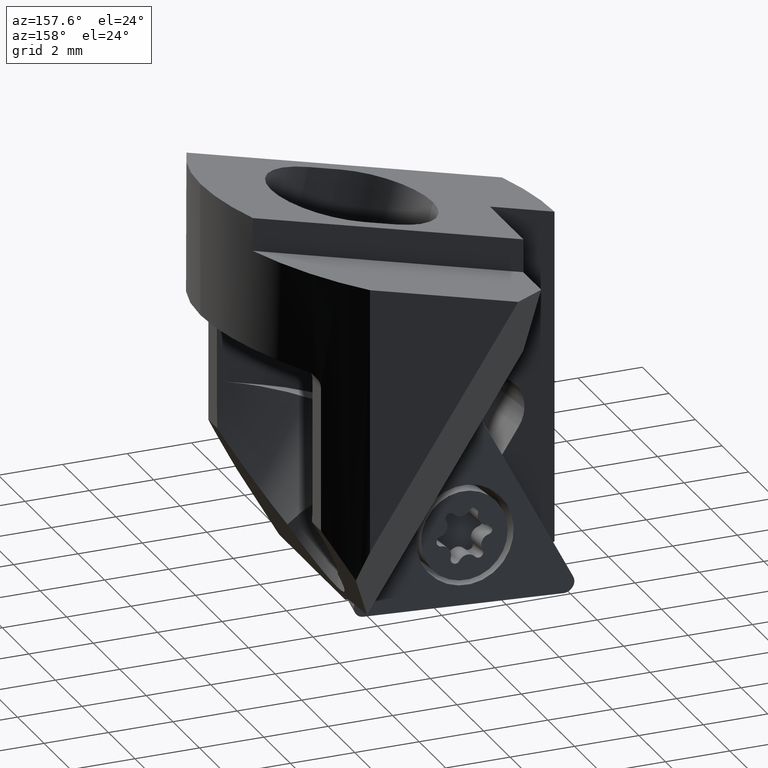
[diagram: clean part render]
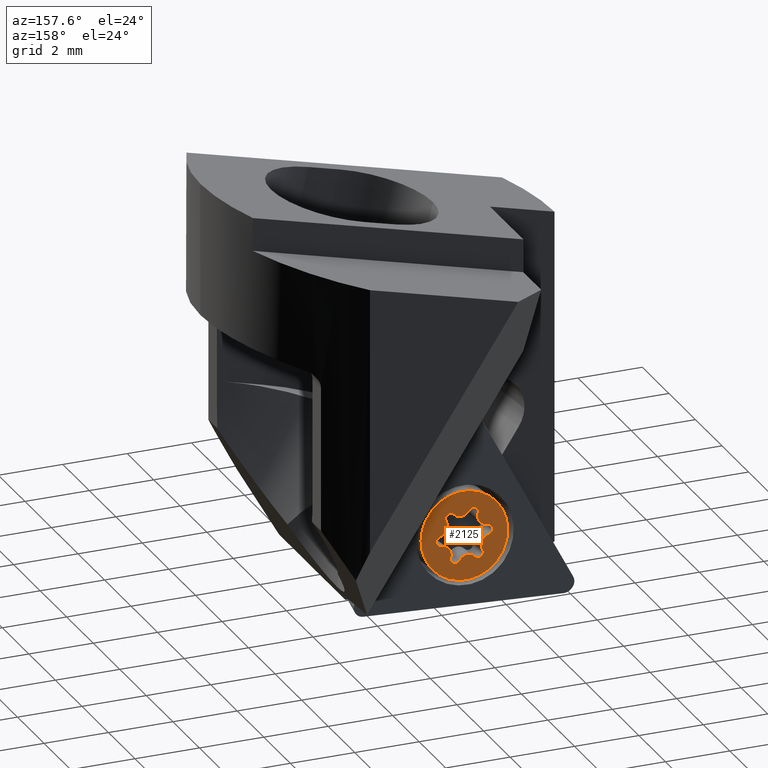
[diagram: same view with one face highlighted and labeled with its STEP entity id]
A machine part, auxiliary view. The second image highlights one B-rep face of the part: STEP entity #2125.
In plain terms, the highlighted planar face has unit normal (0.0046, -0.9962, -0.087).
Its self-contained STEP definition (entity closure, byte-faithful):
#869=EDGE_CURVE('NONE',#1945,#1821,#2448,.T.);
#929=VERTEX_POINT('NONE',#2513);
#955=VERTEX_POINT('NONE',#2541);
#987=EDGE_CURVE('NONE',#2011,#1053,#2575,.T.);
#1053=VERTEX_POINT('',#2644);
#1075=EDGE_CURVE('NONE',#2369,#1945,#2669,.T.);
#1135=EDGE_CURVE('NONE',#1981,#2011,#2732,.T.);
#1163=VERTEX_POINT('NONE',#2762);
#1241=EDGE_CURVE('NONE',#929,#1697,#2849,.T.);
#1275=VERTEX_POINT('NONE',#2888);
#1401=EDGE_CURVE('NONE',#1741,#955,#3029,.T.);
#1437=VERTEX_POINT('NONE',#3071);
#1579=VERTEX_POINT('NONE',#3224);
#1609=EDGE_CURVE('NONE',#1579,#1801,#3257,.T.);
#1697=VERTEX_POINT('NONE',#3353);
#1719=EDGE_CURVE('NONE',#1893,#1275,#3376,.T.);
#1741=VERTEX_POINT('NONE',#3401);
#1779=EDGE_CURVE('NONE',#1163,#1437,#3444,.T.);
#1781=VERTEX_POINT('NONE',#3446);
#1801=VERTEX_POINT('NONE',#3468);
#1821=VERTEX_POINT('NONE',#3490);
#1843=EDGE_CURVE('NONE',#1821,#2211,#3517,.T.);
#1849=EDGE_CURVE('NONE',#1863,#2369,#3523,.T.);
#1863=VERTEX_POINT('NONE',#3539);
#1877=EDGE_CURVE('NONE',#2211,#1163,#3554,.T.);
#1893=VERTEX_POINT('',#3573);
#1941=EDGE_CURVE('NONE',#2203,#1579,#3624,.T.);
#1945=VERTEX_POINT('',#3628);
#1957=EDGE_CURVE('NONE',#1437,#1981,#3641,.T.);
#1979=EDGE_CURVE('NONE',#955,#1741,#3668,.T.);
#1981=VERTEX_POINT('NONE',#3670);
#2011=VERTEX_POINT('NONE',#3705);
#2041=EDGE_CURVE('NONE',#1275,#2203,#3739,.T.);
#2055=EDGE_CURVE('NONE',#1053,#929,#3757,.T.);
#2077=EDGE_CURVE('NONE',#1697,#1781,#3783,.T.);
#2125=ADVANCED_FACE('NONE',(#3833,#3834),#3835,.F.);
#2147=EDGE_CURVE('NONE',#1781,#1893,#3859,.T.);
#2153=EDGE_CURVE('NONE',#1801,#1863,#3866,.T.);
#2203=VERTEX_POINT('NONE',#3921);
#2211=VERTEX_POINT('NONE',#3929);
#2369=VERTEX_POINT('NONE',#4107);
#2448=CIRCLE('',#4200,0.3);
#2513=CARTESIAN_POINT('',(-2.85978115082642,0.415067420885639,-12.9650435031299));
#2541=CARTESIAN_POINT('',(-2.43915213669772,0.239608362394699,-10.9347408066239));
#2575=CIRCLE('',#4385,0.15);
#2644=CARTESIAN_POINT('',(-2.98547450623635,0.418880581878103,-13.0152752555323));
#2669=CIRCLE('',#4532,0.3);
#2732=CIRCLE('',#4626,0.3);
#2762=CARTESIAN_POINT('',(-3.00522896260061,0.30108320447677,-11.6680325898203));
#2849=CIRCLE('',#4800,0.3);
#2888=CARTESIAN_POINT('',(-2.10807331763929,0.411174301435708,-12.88108853857));
#3029=CIRCLE('',#5051,1.35);
#3071=CARTESIAN_POINT('',(-3.28240757679509,0.33428661704975,-12.0625964760768));
#3224=CARTESIAN_POINT('',(-1.8049433069328,0.352235633506307,-12.1906055996353));
#3257=CIRCLE('',#5362,0.3);
#3353=CARTESIAN_POINT('',(-2.60839444000656,0.407441098900712,-12.8645799983252));
#3376=CIRCLE('',#5561,0.15);
#3401=CARTESIAN_POINT('',(-2.67415014354217,0.472649143517778,-13.6143803217664));
#3444=CIRCLE('',#5648,0.3);
#3446=CARTESIAN_POINT('',(-2.37828704674874,0.420916865622892,-13.0067606799976));
#3468=CARTESIAN_POINT('',(-2.009258796816,0.313182776196074,-11.754324536511));
#3490=CARTESIAN_POINT('',(-2.73501523349114,0.291340640289585,-11.5423604483927));
#3517=CIRCLE('',#5739,0.15);
#3523=CIRCLE('',#5749,0.15);
#3539=CARTESIAN_POINT('',(-2.12782777400353,0.293376924034375,-11.533845872858));
#3554=CIRCLE('',#5789,0.15);
#3573=CARTESIAN_POINT('',(-2.26323335011985,0.427654748983982,-13.0778510208339));
#3624=CIRCLE('',#5878,0.15);
#3628=CARTESIAN_POINT('',(-2.50490784023332,0.304816407011765,-11.6845411300651));
#3641=CIRCLE('',#5900,0.15);
#3668=CIRCLE('',#5933,1.35);
#3670=CARTESIAN_POINT('',(-3.30835897330709,0.36002187240617,-12.358515528755));
#3705=CARTESIAN_POINT('',(-3.10404348342389,0.399074729716404,-12.7947965918793));
#3739=CIRCLE('',#6026,0.3);
#3757=CIRCLE('',#6808,0.15);
#3783=CIRCLE('',#6845,0.3);
#3833=FACE_OUTER_BOUND('',#6910,.T.);
#3834=FACE_BOUND('',#6911,.T.);
#3835=PLANE('',#6912);
#3859=CIRCLE('',#6946,0.15);
#3866=CIRCLE('',#6964,0.15);
#3921=CARTESIAN_POINT('',(-1.8308947034448,0.377970888862727,-12.4865246523135));
#3929=CARTESIAN_POINT('',(-2.85006893012005,0.284602756928495,-11.4712701075565));
#4107=CARTESIAN_POINT('',(-2.25352112941346,0.297190085026838,-11.5840776252604));
#4200=AXIS2_PLACEMENT_3D('',#7384,#7385,#7386);
#4385=AXIS2_PLACEMENT_3D('',#7533,#7534,#7535);
#4532=AXIS2_PLACEMENT_3D('',#7640,#7641,#7642);
#4626=AXIS2_PLACEMENT_3D('',#7705,#7706,#7707);
#4800=AXIS2_PLACEMENT_3D('',#7833,#7834,#7835);
#5051=AXIS2_PLACEMENT_3D('',#8061,#8062,#8063);
#5362=AXIS2_PLACEMENT_3D('',#8309,#8310,#8311);
#5561=AXIS2_PLACEMENT_3D('',#8438,#8439,#8440);
#5648=AXIS2_PLACEMENT_3D('',#8541,#8542,#8543);
#5739=AXIS2_PLACEMENT_3D('',#8637,#8638,#8639);
#5749=AXIS2_PLACEMENT_3D('',#8644,#8645,#8646);
#5789=AXIS2_PLACEMENT_3D('',#8680,#8681,#8682);
#5878=AXIS2_PLACEMENT_3D('',#8748,#8749,#8750);
#5900=AXIS2_PLACEMENT_3D('',#8770,#8771,#8772);
#5933=AXIS2_PLACEMENT_3D('',#8822,#8823,#8824);
#6026=AXIS2_PLACEMENT_3D('',#8927,#8928,#8929);
#6808=AXIS2_PLACEMENT_3D('',#8967,#8968,#8969);
#6845=AXIS2_PLACEMENT_3D('',#9010,#9011,#9012);
#6910=EDGE_LOOP('',(#9050,#9051));
#6911=EDGE_LOOP('',(#9052,#9053,#9054,#9055,#9056,#9057,#9058,#9059,#9060,#9061,#9062,#9063,#9064,#9065,#9066,#9067,#9068,#9069));
#6912=AXIS2_PLACEMENT_3D('',#9070,#9071,#9072);
#6946=AXIS2_PLACEMENT_3D('',#9100,#9101,#9102);
#6964=AXIS2_PLACEMENT_3D('',#9111,#9112,#9113);
#7384=CARTESIAN_POINT('',(-2.47879695058394,0.278922986886979,-11.3868034061604));
#7385=DIRECTION('',(-0.00456137913876213,0.996194698091746,0.08703629883128));
#7386=DIRECTION('',(0.906248065078459,-0.032674801434541,0.421481674444764));
#7533=CARTESIAN_POINT('',(-2.97241906141166,0.405933871815709,-12.8664063935799));
#7534=DIRECTION('',(0.00456137913876213,-0.996194698091746,-0.08703629883128));
#7535=DIRECTION('',(-0.819211766247187,-0.053636598981414,0.570977405237608));
#7640=CARTESIAN_POINT('',(-2.47879695058394,0.278922986886979,-11.3868034061604));
#7641=DIRECTION('',(-0.00456137913876213,0.996194698091746,0.08703629883128));
#7642=DIRECTION('',(0.906248065078459,-0.032674801434541,0.421481674444764));
#7705=CARTESIAN_POINT('',(-3.36729232744834,0.385356445517792,-12.6515769884779));
#7706=DIRECTION('',(-0.00456137913876214,0.996194698091746,0.08703629883128));
#7707=DIRECTION('',(-0.819211766247186,-0.053636598981414,0.570977405237609));
#7833=CARTESIAN_POINT('',(-2.63450532965594,0.433334519025498,-13.1623177222299));
#7834=DIRECTION('',(-0.00456137913876213,0.996194698091746,0.08703629883128));
#7835=DIRECTION('',(-0.906248065078456,0.0326748014345416,-0.421481674444771));
#8061=CARTESIAN_POINT('',(-2.55665114011995,0.356128752956239,-12.2745605641952));
#8062=DIRECTION('',(-0.00456137913876213,0.996194698091746,0.08703629883128));
#8063=DIRECTION('',(0.08703629883128,-0.0863114004159552,0.992459079682376));
#8309=CARTESIAN_POINT('',(-1.74600995279155,0.326901060394685,-11.8975441399124));
#8310=DIRECTION('',(-0.00456137913876212,0.996194698091746,0.0870362988312799));
#8311=DIRECTION('',(0.819211766247182,0.0536365989814144,-0.570977405237614));
#8438=CARTESIAN_POINT('',(-2.25017790529515,0.414708038921589,-12.9289821588815));
#8439=DIRECTION('',(0.00456137913876213,-0.996194698091746,-0.08703629883128));
#8440=DIRECTION('',(-0.08703629883128,0.0863114004159552,-0.992459079682376));
#8541=CARTESIAN_POINT('',(-3.28943813791234,0.308150679448532,-11.7638198304431));
#8542=DIRECTION('',(-0.00456137913876213,0.996194698091746,0.08703629883128));
#8543=DIRECTION('',(0.0870362988312732,-0.0863114004159553,0.992459079682377));
#8637=CARTESIAN_POINT('',(-2.86312437494474,0.297549466990888,-11.6201389695088));
#8638=DIRECTION('',(0.00456137913876212,-0.996194698091746,-0.0870362988312799));
#8639=DIRECTION('',(0.906248065078459,-0.032674801434541,0.421481674444764));
#8644=CARTESIAN_POINT('',(-2.14088321882822,0.306323634096768,-11.6827147348104));
#8645=DIRECTION('',(0.00456137913876213,-0.996194698091746,-0.08703629883128));
#8646=DIRECTION('',(0.819211766247182,0.0536365989814144,-0.570977405237614));
#8680=CARTESIAN_POINT('',(-2.86312437494474,0.297549466990888,-11.6201389695088));
#8681=DIRECTION('',(0.00456137913876212,-0.996194698091746,-0.0870362988312799));
#8682=DIRECTION('',(0.906248065078459,-0.032674801434541,0.421481674444764));
#8748=CARTESIAN_POINT('',(-1.83440998400343,0.364902920062118,-12.3371363294967));
#8749=DIRECTION('',(0.00456137913876213,-0.996194698091746,-0.08703629883128));
#8750=DIRECTION('',(-0.08703629883128,0.0863114004159552,-0.992459079682376));
#8770=CARTESIAN_POINT('',(-3.27889229623646,0.347354585850359,-12.2119847988936));
#8771=DIRECTION('',(0.00456137913876213,-0.996194698091746,-0.08703629883128));
#8772=DIRECTION('',(0.0870362988312728,-0.0863114004159553,0.992459079682377));
#8822=CARTESIAN_POINT('',(-2.55665114011995,0.356128752956239,-12.2745605641952));
#8823=DIRECTION('',(-0.00456137913876213,0.996194698091746,0.08703629883128));
#8824=DIRECTION('',(0.08703629883128,-0.0863114004159552,0.992459079682376));
#8927=CARTESIAN_POINT('',(-1.82386414232755,0.404106826463945,-12.7853012979472));
#8928=DIRECTION('',(-0.00456137913876213,0.996194698091746,0.08703629883128));
#8929=DIRECTION('',(-0.08703629883128,0.0863114004159552,-0.992459079682376));
#8967=CARTESIAN_POINT('',(-2.97241906141166,0.405933871815709,-12.8664063935799));
#8968=DIRECTION('',(0.00456137913876213,-0.996194698091746,-0.08703629883128));
#8969=DIRECTION('',(-0.819211766247187,-0.053636598981414,0.570977405237608));
#9010=CARTESIAN_POINT('',(-2.63450532965594,0.433334519025498,-13.1623177222299));
#9011=DIRECTION('',(-0.00456137913876213,0.996194698091746,0.08703629883128));
#9012=DIRECTION('',(-0.906248065078456,0.0326748014345416,-0.421481674444771));
#9050=ORIENTED_EDGE('',*,*,#1979,.T.);
#9051=ORIENTED_EDGE('',*,*,#1401,.T.);
#9052=ORIENTED_EDGE('',*,*,#1941,.T.);
#9053=ORIENTED_EDGE('',*,*,#1609,.T.);
#9054=ORIENTED_EDGE('',*,*,#2153,.T.);
#9055=ORIENTED_EDGE('',*,*,#1849,.T.);
#9056=ORIENTED_EDGE('',*,*,#1075,.T.);
#9057=ORIENTED_EDGE('',*,*,#869,.T.);
#9058=ORIENTED_EDGE('',*,*,#1843,.T.);
#9059=ORIENTED_EDGE('',*,*,#1877,.T.);
#9060=ORIENTED_EDGE('',*,*,#1779,.T.);
#9061=ORIENTED_EDGE('',*,*,#1957,.T.);
#9062=ORIENTED_EDGE('',*,*,#1135,.T.);
#9063=ORIENTED_EDGE('',*,*,#987,.T.);
#9064=ORIENTED_EDGE('',*,*,#2055,.T.);
#9065=ORIENTED_EDGE('',*,*,#1241,.T.);
#9066=ORIENTED_EDGE('',*,*,#2077,.T.);
#9067=ORIENTED_EDGE('',*,*,#2147,.T.);
#9068=ORIENTED_EDGE('',*,*,#1719,.T.);
#9069=ORIENTED_EDGE('',*,*,#2041,.T.);
#9070=CARTESIAN_POINT('',(-1.21178829769609,0.37246685722236,-12.3910809547567));
#9071=DIRECTION('',(0.00456137913876213,-0.996194698091746,-0.08703629883128));
#9072=DIRECTION('',(0.996194698091746,0.0121022994563861,-0.0863114004159553));
#9100=CARTESIAN_POINT('',(-2.25017790529515,0.414708038921589,-12.9289821588815));
#9101=DIRECTION('',(0.00456137913876213,-0.996194698091746,-0.08703629883128));
#9102=DIRECTION('',(-0.08703629883128,0.0863114004159552,-0.992459079682376));
#9111=CARTESIAN_POINT('',(-2.14088321882822,0.306323634096768,-11.6827147348104));
#9112=DIRECTION('',(0.00456137913876213,-0.996194698091746,-0.08703629883128));
#9113=DIRECTION('',(0.819211766247182,0.0536365989814144,-0.570977405237614));